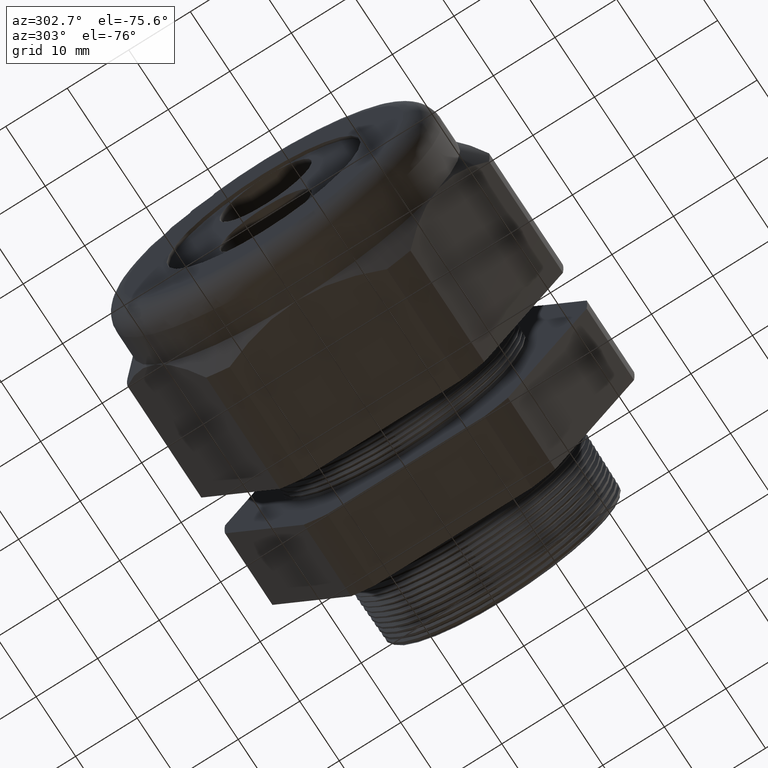
[diagram: clean part render]
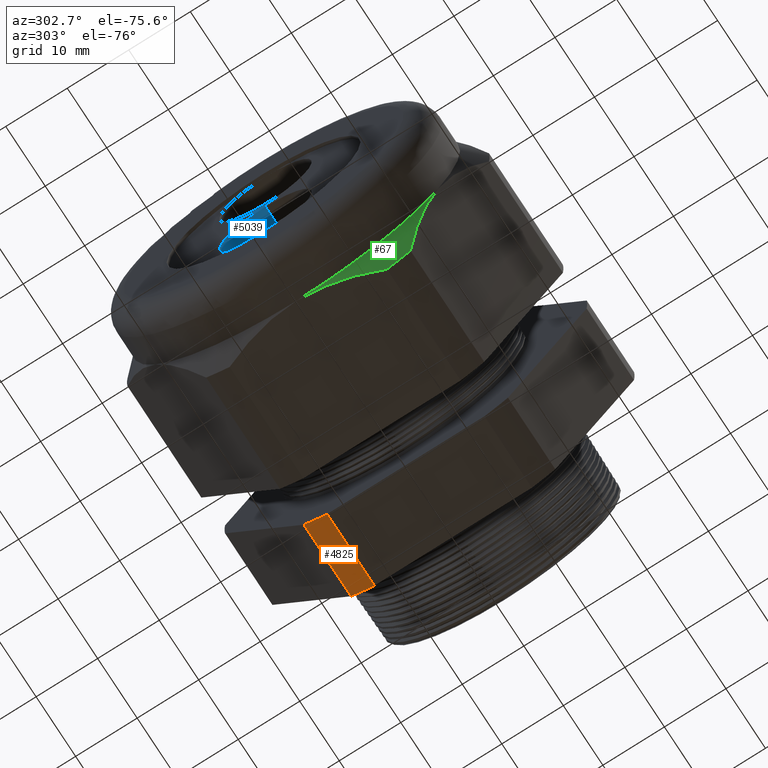
[diagram: same view with three faces highlighted in distinct colors, each labeled with its STEP entity id]
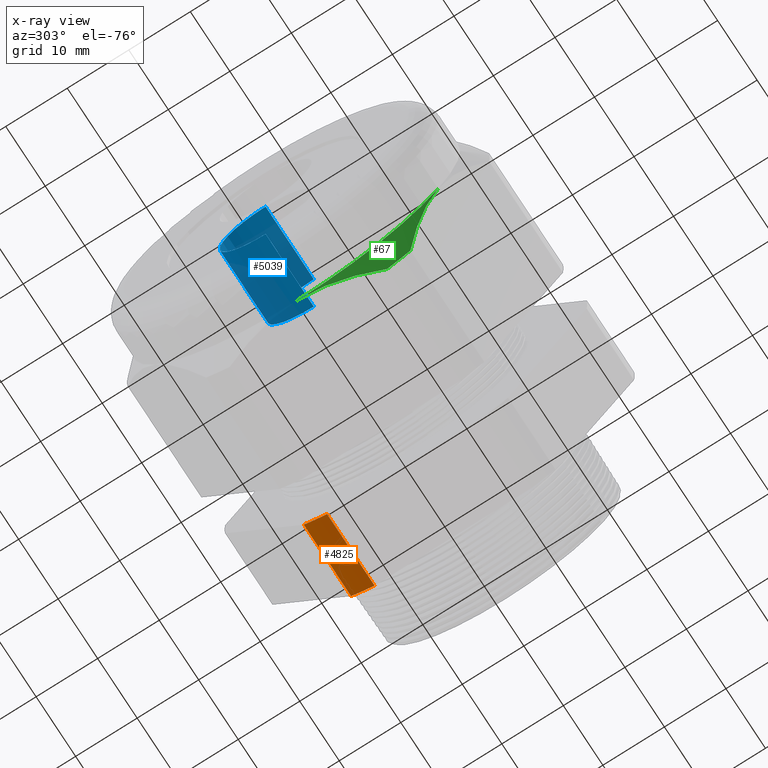
[diagram: x-ray of the same camera — body ghosted, the three highlighted faces saturated]
A machine part, auxiliary view with three faces highlighted in distinct colors.
The next image is the same camera in x-ray (body ghosted, the three faces saturated) — at least one of them is partly hidden behind the body in this view.
Their STEP definitions:

[orange] entity #4825 — the highlighted cylindrical surface (partial cylindrical patch) has radius 29.4627 mm, axis along (-1, 0, 0).
#13 = VERTEX_POINT ( 'NONE', #307 ) ;
#307 = CARTESIAN_POINT ( 'NONE',  ( -0.3100000000000000000, 0.6532729870224188700, -0.9584979952648864400 ) ) ;
#1088 = CARTESIAN_POINT ( 'NONE',  ( -0.7824399999999999100, 0.6532729870224186500, -0.9584979952648864400 ) ) ;
#1112 = CARTESIAN_POINT ( 'NONE',  ( -0.3100000000000000000, 0.5034471198646389700, -1.044999999999999900 ) ) ;
#1113 = DIRECTION ( 'NONE',  ( 0.0000000000000000000, 0.0000000000000000000, -1.000000000000000000 ) ) ;
#1114 = DIRECTION ( 'NONE',  ( 1.000000000000000000, 0.0000000000000000000, 0.0000000000000000000 ) ) ;
#1115 = CARTESIAN_POINT ( 'NONE',  ( -0.3100000000000000000, 0.0000000000000000000, 0.0000000000000000000 ) ) ;
#1116 = AXIS2_PLACEMENT_3D ( 'NONE', #1115, #1114, #1113 ) ;
#1117 = CIRCLE ( 'NONE', #1116, 1.159950000000000000 ) ;
#2873 = DIRECTION ( 'NONE',  ( 0.0000000000000000000, 0.0000000000000000000, 1.000000000000000000 ) ) ;
#2874 = DIRECTION ( 'NONE',  ( -1.000000000000000000, 0.0000000000000000000, 0.0000000000000000000 ) ) ;
#2875 = AXIS2_PLACEMENT_3D ( 'NONE', #2878, #2874, #2873 ) ;
#2876 = CYLINDRICAL_SURFACE ( 'NONE', #2875, 1.159950000000000000 ) ;
#2878 = CARTESIAN_POINT ( 'NONE',  ( 0.2000000000000000400, 0.0000000000000000000, 0.0000000000000000000 ) ) ;
#2879 = FACE_OUTER_BOUND ( 'NONE', #4027, .T. ) ;
#2918 = DIRECTION ( 'NONE',  ( -1.000000000000000000, 0.0000000000000000000, 0.0000000000000000000 ) ) ;
#2919 = VECTOR ( 'NONE', #2918, 39.37007874015748100 ) ;
#2920 = CARTESIAN_POINT ( 'NONE',  ( 0.2000000000000000400, 0.5034471198646389700, -1.044999999999999900 ) ) ;
#2921 = LINE ( 'NONE', #2920, #2919 ) ;
#3011 = DIRECTION ( 'NONE',  ( -1.000000000000000000, 0.0000000000000000000, 0.0000000000000000000 ) ) ;
#3012 = VECTOR ( 'NONE', #3011, 39.37007874015748100 ) ;
#3013 = CARTESIAN_POINT ( 'NONE',  ( 0.2000000000000000400, 0.6532729870224188700, -0.9584979952648864400 ) ) ;
#3014 = LINE ( 'NONE', #3013, #3012 ) ;
#3054 = DIRECTION ( 'NONE',  ( 0.0000000000000000000, 0.0000000000000000000, 1.000000000000000000 ) ) ;
#3055 = DIRECTION ( 'NONE',  ( -1.000000000000000000, 0.0000000000000000000, 0.0000000000000000000 ) ) ;
#3538 = CARTESIAN_POINT ( 'NONE',  ( -0.7824399999999999100, 0.5034471198646389700, -1.044999999999999900 ) ) ;
#3563 = CARTESIAN_POINT ( 'NONE',  ( -0.7824399999999999100, 0.0000000000000000000, 0.0000000000000000000 ) ) ;
#3564 = AXIS2_PLACEMENT_3D ( 'NONE', #3563, #3055, #3054 ) ;
#3569 = CIRCLE ( 'NONE', #3564, 1.159950000000000000 ) ;
#3868 = VERTEX_POINT ( 'NONE', #1088 ) ;
#3889 = EDGE_CURVE ( 'NONE', #3890, #13, #1117, .T. ) ;
#3890 = VERTEX_POINT ( 'NONE', #1112 ) ;
#4025 = ORIENTED_EDGE ( 'NONE', *, *, #4834, .T. ) ;
#4026 = ORIENTED_EDGE ( 'NONE', *, *, #5234, .F. ) ;
#4027 = EDGE_LOOP ( 'NONE', ( #4025, #4026, #4930, #4886 ) ) ;
#4825 = ADVANCED_FACE ( 'NONE', ( #2879 ), #2876, .T. ) ;
#4834 = EDGE_CURVE ( 'NONE', #3890, #5221, #2921, .T. ) ;
#4886 = ORIENTED_EDGE ( 'NONE', *, *, #3889, .F. ) ;
#4891 = EDGE_CURVE ( 'NONE', #13, #3868, #3014, .T. ) ;
#4930 = ORIENTED_EDGE ( 'NONE', *, *, #4891, .F. ) ;
#5221 = VERTEX_POINT ( 'NONE', #3538 ) ;
#5234 = EDGE_CURVE ( 'NONE', #3868, #5221, #3569, .T. ) ;

[blue] entity #5039 — the highlighted cylindrical surface (partial cylindrical patch) has radius 7.493 mm, axis along (-1, 0, 0).
#993 = CARTESIAN_POINT ( 'NONE',  ( -2.180000000000000200, 0.0000000000000000000, -0.02881999999999996700 ) ) ;
#1062 = DIRECTION ( 'NONE',  ( -1.000000000000000000, 0.0000000000000000000, 0.0000000000000000000 ) ) ;
#1063 = VECTOR ( 'NONE', #1062, 39.37007874015748100 ) ;
#1064 = CARTESIAN_POINT ( 'NONE',  ( 0.2000000000000000400, 0.0000000000000000000, -0.02881999999999996700 ) ) ;
#1065 = LINE ( 'NONE', #1064, #1063 ) ;
#1070 = CARTESIAN_POINT ( 'NONE',  ( -1.700000000000000000, 0.0000000000000000000, -0.3238199999999999400 ) ) ;
#1130 = CARTESIAN_POINT ( 'NONE',  ( -2.180000000000000200, 3.612708057484692000E-017, -0.6188199999999999300 ) ) ;
#1131 = DIRECTION ( 'NONE',  ( 0.0000000000000000000, 0.0000000000000000000, 1.000000000000000000 ) ) ;
#1132 = DIRECTION ( 'NONE',  ( -1.000000000000000000, 0.0000000000000000000, 0.0000000000000000000 ) ) ;
#1133 = AXIS2_PLACEMENT_3D ( 'NONE', #1070, #1132, #1131 ) ;
#1134 = CIRCLE ( 'NONE', #1133, 0.2949999999999999800 ) ;
#1195 = DIRECTION ( 'NONE',  ( -1.000000000000000000, 0.0000000000000000000, 0.0000000000000000000 ) ) ;
#1196 = VECTOR ( 'NONE', #1195, 39.37007874015748100 ) ;
#1197 = CARTESIAN_POINT ( 'NONE',  ( 0.2000000000000000400, 3.612708057484692000E-017, -0.6188199999999999300 ) ) ;
#1198 = LINE ( 'NONE', #1197, #1196 ) ;
#2469 = CARTESIAN_POINT ( 'NONE',  ( -1.700000000000000000, 0.0000000000000000000, -0.02881999999999996700 ) ) ;
#2503 = CARTESIAN_POINT ( 'NONE',  ( -1.700000000000000000, 3.612708057484692000E-017, -0.6188199999999999300 ) ) ;
#3186 = DIRECTION ( 'NONE',  ( 0.0000000000000000000, 0.0000000000000000000, 1.000000000000000000 ) ) ;
#3187 = DIRECTION ( 'NONE',  ( -1.000000000000000000, 0.0000000000000000000, 0.0000000000000000000 ) ) ;
#3188 = AXIS2_PLACEMENT_3D ( 'NONE', #3190, #3187, #3186 ) ;
#3189 = CYLINDRICAL_SURFACE ( 'NONE', #3188, 0.2949999999999999800 ) ;
#3190 = CARTESIAN_POINT ( 'NONE',  ( 0.2000000000000000400, 0.0000000000000000000, -0.3238199999999999400 ) ) ;
#3191 = FACE_OUTER_BOUND ( 'NONE', #5012, .T. ) ;
#3204 = DIRECTION ( 'NONE',  ( 0.0000000000000000000, 0.0000000000000000000, 1.000000000000000000 ) ) ;
#3205 = DIRECTION ( 'NONE',  ( -1.000000000000000000, 0.0000000000000000000, 0.0000000000000000000 ) ) ;
#3206 = CARTESIAN_POINT ( 'NONE',  ( -2.180000000000000200, 0.0000000000000000000, -0.3238199999999999400 ) ) ;
#3207 = AXIS2_PLACEMENT_3D ( 'NONE', #3206, #3205, #3204 ) ;
#3208 = CIRCLE ( 'NONE', #3207, 0.2949999999999999800 ) ;
#3805 = ORIENTED_EDGE ( 'NONE', *, *, #3879, .F. ) ;
#3817 = VERTEX_POINT ( 'NONE', #993 ) ;
#3834 = ORIENTED_EDGE ( 'NONE', *, *, #3849, .T. ) ;
#3836 = ORIENTED_EDGE ( 'NONE', *, *, #5028, .T. ) ;
#3849 = EDGE_CURVE ( 'NONE', #4645, #3817, #1065, .T. ) ;
#3879 = EDGE_CURVE ( 'NONE', #4645, #4660, #1134, .T. ) ;
#3880 = VERTEX_POINT ( 'NONE', #1130 ) ;
#3947 = EDGE_CURVE ( 'NONE', #4660, #3880, #1198, .T. ) ;
#4645 = VERTEX_POINT ( 'NONE', #2469 ) ;
#4660 = VERTEX_POINT ( 'NONE', #2503 ) ;
#5012 = EDGE_LOOP ( 'NONE', ( #5029, #3805, #3834, #3836 ) ) ;
#5028 = EDGE_CURVE ( 'NONE', #3817, #3880, #3208, .T. ) ;
#5029 = ORIENTED_EDGE ( 'NONE', *, *, #3947, .F. ) ;
#5039 = ADVANCED_FACE ( 'NONE', ( #3191 ), #3189, .F. ) ;

[green] entity #67 — the highlighted conical surface has half-angle 45 deg.
#40 = ORIENTED_EDGE ( 'NONE', *, *, #4719, .F. ) ;
#41 = ORIENTED_EDGE ( 'NONE', *, *, #3912, .T. ) ;
#42 = EDGE_LOOP ( 'NONE', ( #41, #40, #3748, #3747 ) ) ;
#67 = ADVANCED_FACE ( 'NONE', ( #395 ), #458, .T. ) ;
#395 = FACE_OUTER_BOUND ( 'NONE', #42, .T. ) ;
#454 = DIRECTION ( 'NONE',  ( 0.0000000000000000000, 0.0000000000000000000, 1.000000000000000000 ) ) ;
#455 = DIRECTION ( 'NONE',  ( 1.000000000000000000, 0.0000000000000000000, 0.0000000000000000000 ) ) ;
#456 = CARTESIAN_POINT ( 'NONE',  ( -1.869292000000000000, 0.0000000000000000000, 0.0000000000000000000 ) ) ;
#457 = AXIS2_PLACEMENT_3D ( 'NONE', #456, #455, #454 ) ;
#458 = CONICAL_SURFACE ( 'NONE', #457, 1.045000000000000200, 0.7853981633974501700 ) ;
#716 = B_SPLINE_CURVE_WITH_KNOTS ( 'NONE', 3,
 ( #778, #777, #776, #774, #773, #772, #771, #770 ),
 .UNSPECIFIED., .F., .F.,
 ( 4, 2, 2, 4 ),
 ( 0.01312468964301425000, 0.01968241065928899600, 0.02296127116742637700, 0.02624013167556375800 ),
 .UNSPECIFIED. ) ;
#770 = CARTESIAN_POINT ( 'NONE',  ( -1.754342000000000300, -0.6532729870224180900, -0.9584979952648871000 ) ) ;
#771 = CARTESIAN_POINT ( 'NONE',  ( -1.771743928187930100, -0.6733201437198448300, -0.9237753013176495100 ) ) ;
#772 = CARTESIAN_POINT ( 'NONE',  ( -1.787722809093209100, -0.6936676680849163100, -0.8885323553090995800 ) ) ;
#773 = CARTESIAN_POINT ( 'NONE',  ( -1.816049984818948400, -0.7349840752165897100, -0.8169702389708404200 ) ) ;
#774 = CARTESIAN_POINT ( 'NONE',  ( -1.828286401335963200, -0.7557945758470279200, -0.7809253945479772700 ) ) ;
#776 = CARTESIAN_POINT ( 'NONE',  ( -1.858295772310754700, -0.8187555438091956800, -0.6718737991437870900 ) ) ;
#777 = CARTESIAN_POINT ( 'NONE',  ( -1.869292000000000200, -0.8614415502338408400, -0.5979394672440895300 ) ) ;
#778 = CARTESIAN_POINT ( 'NONE',  ( -1.869292000000000000, -0.9049965469547380800, -0.5225000000000000800 ) ) ;
#780 = CARTESIAN_POINT ( 'NONE',  ( -1.869292000000000000, -0.9049965469547380800, -0.5225000000000000800 ) ) ;
#1181 = DIRECTION ( 'NONE',  ( 0.0000000000000000000, 0.0000000000000000000, -1.000000000000000000 ) ) ;
#1182 = DIRECTION ( 'NONE',  ( 1.000000000000000000, 0.0000000000000000000, 0.0000000000000000000 ) ) ;
#1183 = CARTESIAN_POINT ( 'NONE',  ( -1.869292000000000000, 0.0000000000000000000, 0.0000000000000000000 ) ) ;
#1184 = AXIS2_PLACEMENT_3D ( 'NONE', #1183, #1182, #1181 ) ;
#1185 = CIRCLE ( 'NONE', #1184, 1.044999999999999700 ) ;
#2116 = CARTESIAN_POINT ( 'NONE',  ( -1.869292000000000000, 0.0000000000000000000, -1.044999999999999900 ) ) ;
#2629 = CARTESIAN_POINT ( 'NONE',  ( -1.828087416907578500, -0.2991342696643443700, -1.044999999999999900 ) ) ;
#2630 = CARTESIAN_POINT ( 'NONE',  ( -1.815810422140071900, -0.3407977905260944900, -1.045000000000000200 ) ) ;
#2631 = CARTESIAN_POINT ( 'NONE',  ( -1.787425944234740200, -0.4234483023531728200, -1.044999999999999900 ) ) ;
#2632 = CARTESIAN_POINT ( 'NONE',  ( -1.771541667379295000, -0.4638188185209403700, -1.044999999999999700 ) ) ;
#2633 = CARTESIAN_POINT ( 'NONE',  ( -1.754342000000000300, -0.5034471198646389700, -1.044999999999999900 ) ) ;
#2636 = B_SPLINE_CURVE_WITH_KNOTS ( 'NONE', 3,
 ( #2633, #2632, #2631, #2630, #2629, #2693, #2692, #2691 ),
 .UNSPECIFIED., .F., .F.,
 ( 4, 2, 2, 4 ),
 ( 0.01778252618355635100, 0.02105649278474032100, 0.02433045938592429500, 0.03087839258829223200 ),
 .UNSPECIFIED. ) ;
#2656 = EDGE_CURVE ( 'NONE', #2698, #4737, #716, .T. ) ;
#2658 = CIRCLE ( 'NONE', #2726, 1.159950000000000000 ) ;
#2669 = CARTESIAN_POINT ( 'NONE',  ( -1.754342000000000300, -0.6532729870224180900, -0.9584979952648871000 ) ) ;
#2682 = CARTESIAN_POINT ( 'NONE',  ( -1.754342000000000300, -0.5034471198646389700, -1.044999999999999900 ) ) ;
#2691 = CARTESIAN_POINT ( 'NONE',  ( -1.869292000000000000, 0.0000000000000000000, -1.044999999999999900 ) ) ;
#2692 = CARTESIAN_POINT ( 'NONE',  ( -1.869292000000000200, -0.08745202795108886200, -1.044999999999999700 ) ) ;
#2693 = CARTESIAN_POINT ( 'NONE',  ( -1.858213035920961900, -0.1730359448115060800, -1.044999999999999700 ) ) ;
#2698 = VERTEX_POINT ( 'NONE', #780 ) ;
#2723 = DIRECTION ( 'NONE',  ( 0.0000000000000000000, 0.0000000000000000000, -1.000000000000000000 ) ) ;
#2724 = DIRECTION ( 'NONE',  ( 1.000000000000000000, 0.0000000000000000000, 0.0000000000000000000 ) ) ;
#2725 = CARTESIAN_POINT ( 'NONE',  ( -1.754342000000000300, 0.0000000000000000000, 0.0000000000000000000 ) ) ;
#2726 = AXIS2_PLACEMENT_3D ( 'NONE', #2725, #2724, #2723 ) ;
#3747 = ORIENTED_EDGE ( 'NONE', *, *, #2656, .F. ) ;
#3748 = ORIENTED_EDGE ( 'NONE', *, *, #4742, .F. ) ;
#3912 = EDGE_CURVE ( 'NONE', #2698, #4454, #1185, .T. ) ;
#4454 = VERTEX_POINT ( 'NONE', #2116 ) ;
#4719 = EDGE_CURVE ( 'NONE', #4732, #4454, #2636, .T. ) ;
#4732 = VERTEX_POINT ( 'NONE', #2682 ) ;
#4737 = VERTEX_POINT ( 'NONE', #2669 ) ;
#4742 = EDGE_CURVE ( 'NONE', #4737, #4732, #2658, .T. ) ;